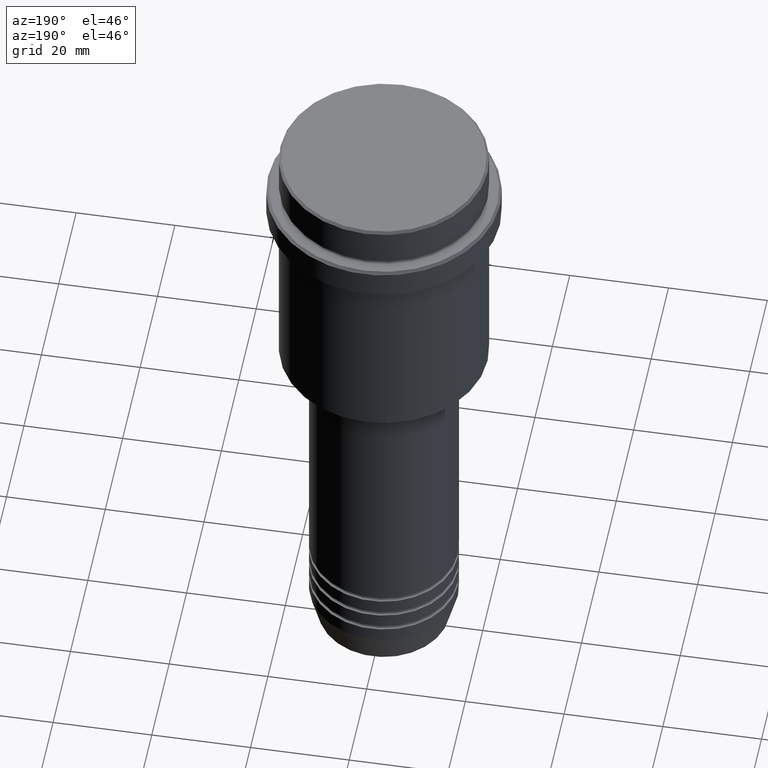
[diagram: clean part render]
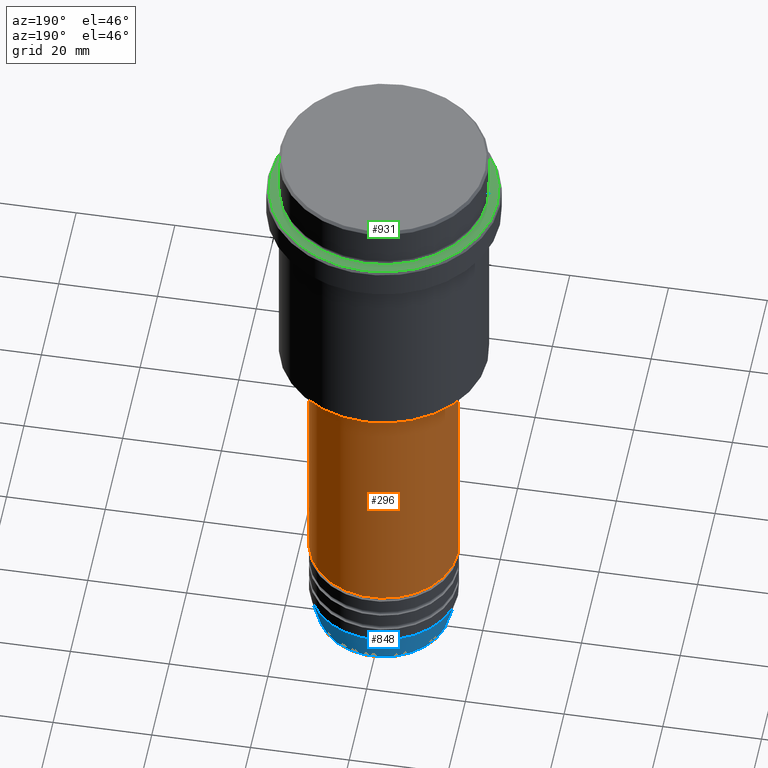
[diagram: same view with three faces highlighted in distinct colors, each labeled with its STEP entity id]
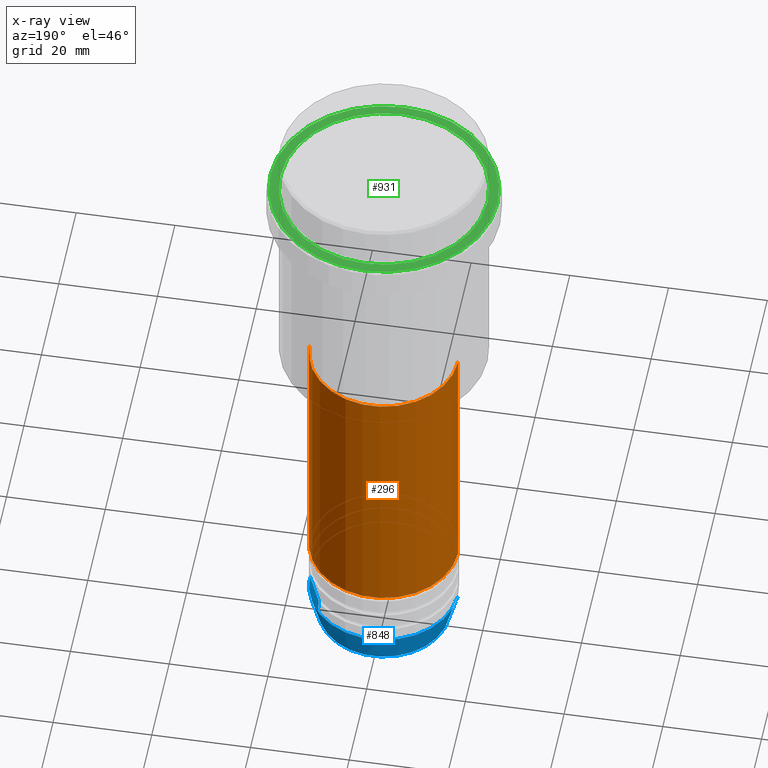
[diagram: x-ray of the same camera — body ghosted, the three highlighted faces saturated]
A machine part, auxiliary view with three faces highlighted in distinct colors.
The next image is the same camera in x-ray (body ghosted, the three faces saturated) — at least one of them is partly hidden behind the body in this view.
Their STEP definitions:

[orange] entity #296 — the highlighted cylindrical surface (partial cylindrical patch) has radius 15 mm, axis along (-0, -0, 1).
#31 = CARTESIAN_POINT ( 'NONE',  ( 0.000000000000000000, 0.000000000000000000, 0.000000000000000000 ) ) ;
#70 = CARTESIAN_POINT ( 'NONE',  ( 15.00000000000000000, 0.000000000000000000, -110.9999999999998721 ) ) ;
#77 = ORIENTED_EDGE ( 'NONE', *, *, #1343, .T. ) ;
#141 = ORIENTED_EDGE ( 'NONE', *, *, #367, .T. ) ;
#146 = CIRCLE ( 'NONE', #950, 15.00000000000000000 ) ;
#178 = DIRECTION ( 'NONE',  ( -0.000000000000000000, -0.000000000000000000, 1.000000000000000000 ) ) ;
#183 = LINE ( 'NONE', #934, #441 ) ;
#186 = EDGE_LOOP ( 'NONE', ( #141, #77, #1395, #1080 ) ) ;
#193 = VERTEX_POINT ( 'NONE', #892 ) ;
#196 = CIRCLE ( 'NONE', #374, 15.00000000000000000 ) ;
#247 = DIRECTION ( 'NONE',  ( -0.000000000000000000, -0.000000000000000000, 1.000000000000000000 ) ) ;
#255 = EDGE_CURVE ( 'NONE', #1405, #433, #146, .T. ) ;
#296 = ADVANCED_FACE ( 'NONE', ( #355 ), #1230, .T. ) ;
#349 = VECTOR ( 'NONE', #1381, 1000.000000000000000 ) ;
#355 = FACE_OUTER_BOUND ( 'NONE', #186, .T. ) ;
#367 = EDGE_CURVE ( 'NONE', #650, #193, #196, .T. ) ;
#372 = DIRECTION ( 'NONE',  ( 1.000000000000000000, 0.000000000000000000, 0.000000000000000000 ) ) ;
#374 = AXIS2_PLACEMENT_3D ( 'NONE', #727, #1033, #1366 ) ;
#433 = VERTEX_POINT ( 'NONE', #816 ) ;
#441 = VECTOR ( 'NONE', #178, 1000.000000000000000 ) ;
#472 = CARTESIAN_POINT ( 'NONE',  ( 0.000000000000000000, 0.000000000000000000, -55.99999999999997158 ) ) ;
#489 = LINE ( 'NONE', #1150, #349 ) ;
#556 = DIRECTION ( 'NONE',  ( -0.000000000000000000, -0.000000000000000000, 1.000000000000000000 ) ) ;
#650 = VERTEX_POINT ( 'NONE', #70 ) ;
#727 = CARTESIAN_POINT ( 'NONE',  ( 0.000000000000000000, 0.000000000000000000, -110.9999999999998721 ) ) ;
#816 = CARTESIAN_POINT ( 'NONE',  ( -15.00000000000000000, 1.836970198721029589E-15, -55.99999999999997158 ) ) ;
#892 = CARTESIAN_POINT ( 'NONE',  ( -15.00000000000000000, 1.836970198721029589E-15, -110.9999999999998721 ) ) ;
#934 = CARTESIAN_POINT ( 'NONE',  ( -15.00000000000000000, 1.836970198721029589E-15, 0.000000000000000000 ) ) ;
#950 = AXIS2_PLACEMENT_3D ( 'NONE', #472, #556, #372 ) ;
#990 = CARTESIAN_POINT ( 'NONE',  ( 15.00000000000000000, 0.000000000000000000, -55.99999999999997158 ) ) ;
#997 = EDGE_CURVE ( 'NONE', #650, #1405, #489, .T. ) ;
#1033 = DIRECTION ( 'NONE',  ( -0.000000000000000000, -0.000000000000000000, 1.000000000000000000 ) ) ;
#1080 = ORIENTED_EDGE ( 'NONE', *, *, #997, .F. ) ;
#1132 = AXIS2_PLACEMENT_3D ( 'NONE', #31, #247, #1374 ) ;
#1150 = CARTESIAN_POINT ( 'NONE',  ( 15.00000000000000000, 0.000000000000000000, 0.000000000000000000 ) ) ;
#1230 = CYLINDRICAL_SURFACE ( 'NONE', #1132, 15.00000000000000000 ) ;
#1343 = EDGE_CURVE ( 'NONE', #193, #433, #183, .T. ) ;
#1366 = DIRECTION ( 'NONE',  ( 1.000000000000000000, 0.000000000000000000, 0.000000000000000000 ) ) ;
#1374 = DIRECTION ( 'NONE',  ( 1.000000000000000000, 0.000000000000000000, 0.000000000000000000 ) ) ;
#1381 = DIRECTION ( 'NONE',  ( -0.000000000000000000, -0.000000000000000000, 1.000000000000000000 ) ) ;
#1395 = ORIENTED_EDGE ( 'NONE', *, *, #255, .F. ) ;
#1405 = VERTEX_POINT ( 'NONE', #990 ) ;

[blue] entity #848 — the highlighted conical surface has half-angle 15 deg.
#48 = FACE_OUTER_BOUND ( 'NONE', #1272, .T. ) ;
#55 = VECTOR ( 'NONE', #167, 1000.000000000000000 ) ;
#65 = VERTEX_POINT ( 'NONE', #1199 ) ;
#167 = DIRECTION ( 'NONE',  ( -0.2588190451025213501, 3.169619151431772337E-17, 0.9659258262890680902 ) ) ;
#231 = ORIENTED_EDGE ( 'NONE', *, *, #1276, .T. ) ;
#265 = CONICAL_SURFACE ( 'NONE', #619, 15.00000000000000000, 0.2617993877991500740 ) ;
#361 = CARTESIAN_POINT ( 'NONE',  ( 0.000000000000000000, 0.000000000000000000, -123.0000000000000000 ) ) ;
#375 = DIRECTION ( 'NONE',  ( 1.000000000000000000, 0.000000000000000000, 0.000000000000000000 ) ) ;
#431 = ORIENTED_EDGE ( 'NONE', *, *, #869, .F. ) ;
#444 = AXIS2_PLACEMENT_3D ( 'NONE', #361, #1035, #469 ) ;
#457 = CARTESIAN_POINT ( 'NONE',  ( 15.00000000000000000, 0.000000000000000000, -123.0000000000000000 ) ) ;
#469 = DIRECTION ( 'NONE',  ( 1.000000000000000000, 0.000000000000000000, 0.000000000000000000 ) ) ;
#486 = ORIENTED_EDGE ( 'NONE', *, *, #910, .T. ) ;
#523 = VERTEX_POINT ( 'NONE', #1328 ) ;
#554 = VERTEX_POINT ( 'NONE', #814 ) ;
#559 = DIRECTION ( 'NONE',  ( 1.000000000000000000, 0.000000000000000000, 0.000000000000000000 ) ) ;
#577 = LINE ( 'NONE', #457, #690 ) ;
#619 = AXIS2_PLACEMENT_3D ( 'NONE', #1124, #1119, #559 ) ;
#638 = CIRCLE ( 'NONE', #645, 13.22365507213719305 ) ;
#645 = AXIS2_PLACEMENT_3D ( 'NONE', #1232, #1023, #375 ) ;
#676 = DIRECTION ( 'NONE',  ( 0.2588190451025213501, 0.000000000000000000, 0.9659258262890680902 ) ) ;
#690 = VECTOR ( 'NONE', #676, 1000.000000000000000 ) ;
#814 = CARTESIAN_POINT ( 'NONE',  ( -13.22365507213719305, 1.728200442216588386E-15, -129.6294095225512422 ) ) ;
#837 = VERTEX_POINT ( 'NONE', #1145 ) ;
#841 = EDGE_CURVE ( 'NONE', #65, #523, #577, .T. ) ;
#848 = ADVANCED_FACE ( 'NONE', ( #48 ), #265, .T. ) ;
#869 = EDGE_CURVE ( 'NONE', #523, #837, #1064, .T. ) ;
#910 = EDGE_CURVE ( 'NONE', #65, #554, #638, .T. ) ;
#940 = LINE ( 'NONE', #1282, #55 ) ;
#996 = ORIENTED_EDGE ( 'NONE', *, *, #841, .F. ) ;
#1023 = DIRECTION ( 'NONE',  ( -0.000000000000000000, -0.000000000000000000, 1.000000000000000000 ) ) ;
#1035 = DIRECTION ( 'NONE',  ( -0.000000000000000000, -0.000000000000000000, 1.000000000000000000 ) ) ;
#1064 = CIRCLE ( 'NONE', #444, 15.00000000000000000 ) ;
#1119 = DIRECTION ( 'NONE',  ( -0.000000000000000000, -0.000000000000000000, 1.000000000000000000 ) ) ;
#1124 = CARTESIAN_POINT ( 'NONE',  ( 0.000000000000000000, 0.000000000000000000, -123.0000000000000000 ) ) ;
#1145 = CARTESIAN_POINT ( 'NONE',  ( -15.00000000000000000, 1.836970198721029589E-15, -123.0000000000000000 ) ) ;
#1199 = CARTESIAN_POINT ( 'NONE',  ( 13.22365507213719305, 0.000000000000000000, -129.6294095225512422 ) ) ;
#1232 = CARTESIAN_POINT ( 'NONE',  ( 0.000000000000000000, 0.000000000000000000, -129.6294095225512422 ) ) ;
#1272 = EDGE_LOOP ( 'NONE', ( #486, #231, #431, #996 ) ) ;
#1276 = EDGE_CURVE ( 'NONE', #554, #837, #940, .T. ) ;
#1282 = CARTESIAN_POINT ( 'NONE',  ( -15.00000000000000000, 1.836970198721029589E-15, -123.0000000000000000 ) ) ;
#1328 = CARTESIAN_POINT ( 'NONE',  ( 15.00000000000000000, 0.000000000000000000, -123.0000000000000000 ) ) ;

[green] entity #931 — the highlighted planar face has unit normal (0, -0, 1).
#36 = CARTESIAN_POINT ( 'NONE',  ( 23.00000000000001066, 2.847303808017596928E-15, -9.000000000000001776 ) ) ;
#45 = EDGE_CURVE ( 'NONE', #1412, #791, #1246, .T. ) ;
#63 = CARTESIAN_POINT ( 'NONE',  ( 0.000000000000000000, 0.000000000000000000, -9.000000000000001776 ) ) ;
#93 = CARTESIAN_POINT ( 'NONE',  ( -20.99999999999999289, 2.571758278209440872E-15, -9.000000000000001776 ) ) ;
#95 = DIRECTION ( 'NONE',  ( 1.000000000000000000, 0.000000000000000000, 0.000000000000000000 ) ) ;
#156 = FACE_OUTER_BOUND ( 'NONE', #651, .T. ) ;
#162 = PLANE ( 'NONE',  #1313 ) ;
#194 = EDGE_CURVE ( 'NONE', #791, #1412, #1015, .T. ) ;
#250 = FACE_BOUND ( 'NONE', #1332, .T. ) ;
#259 = DIRECTION ( 'NONE',  ( 1.000000000000000000, 0.000000000000000000, 0.000000000000000000 ) ) ;
#383 = DIRECTION ( 'NONE',  ( 0.000000000000000000, -0.000000000000000000, 1.000000000000000000 ) ) ;
#396 = AXIS2_PLACEMENT_3D ( 'NONE', #672, #999, #451 ) ;
#451 = DIRECTION ( 'NONE',  ( 1.000000000000000000, 0.000000000000000000, 0.000000000000000000 ) ) ;
#525 = CARTESIAN_POINT ( 'NONE',  ( 20.99999999999999289, 0.000000000000000000, -9.000000000000001776 ) ) ;
#535 = CARTESIAN_POINT ( 'NONE',  ( 0.000000000000000000, 0.000000000000000000, -9.000000000000001776 ) ) ;
#592 = AXIS2_PLACEMENT_3D ( 'NONE', #535, #973, #1072 ) ;
#606 = ORIENTED_EDGE ( 'NONE', *, *, #729, .T. ) ;
#651 = EDGE_LOOP ( 'NONE', ( #606, #980 ) ) ;
#672 = CARTESIAN_POINT ( 'NONE',  ( 0.000000000000000000, 0.000000000000000000, -9.000000000000001776 ) ) ;
#691 = CARTESIAN_POINT ( 'NONE',  ( 0.000000000000000000, 0.000000000000000000, -9.000000000000001776 ) ) ;
#715 = CIRCLE ( 'NONE', #396, 23.00000000000001066 ) ;
#729 = EDGE_CURVE ( 'NONE', #819, #942, #715, .T. ) ;
#791 = VERTEX_POINT ( 'NONE', #525 ) ;
#818 = DIRECTION ( 'NONE',  ( 1.000000000000000000, 0.000000000000000000, 0.000000000000000000 ) ) ;
#819 = VERTEX_POINT ( 'NONE', #959 ) ;
#826 = ORIENTED_EDGE ( 'NONE', *, *, #45, .T. ) ;
#836 = CIRCLE ( 'NONE', #1409, 23.00000000000001066 ) ;
#931 = ADVANCED_FACE ( 'NONE', ( #156, #250 ), #162, .T. ) ;
#942 = VERTEX_POINT ( 'NONE', #36 ) ;
#959 = CARTESIAN_POINT ( 'NONE',  ( -23.00000000000001066, 0.000000000000000000, -9.000000000000001776 ) ) ;
#967 = ORIENTED_EDGE ( 'NONE', *, *, #194, .T. ) ;
#973 = DIRECTION ( 'NONE',  ( 0.000000000000000000, 0.000000000000000000, -1.000000000000000000 ) ) ;
#980 = ORIENTED_EDGE ( 'NONE', *, *, #1016, .T. ) ;
#999 = DIRECTION ( 'NONE',  ( -0.000000000000000000, -0.000000000000000000, 1.000000000000000000 ) ) ;
#1015 = CIRCLE ( 'NONE', #1294, 20.99999999999999289 ) ;
#1016 = EDGE_CURVE ( 'NONE', #942, #819, #836, .T. ) ;
#1072 = DIRECTION ( 'NONE',  ( 1.000000000000000000, 0.000000000000000000, 0.000000000000000000 ) ) ;
#1105 = DIRECTION ( 'NONE',  ( 0.000000000000000000, 0.000000000000000000, -1.000000000000000000 ) ) ;
#1238 = CARTESIAN_POINT ( 'NONE',  ( 0.000000000000000000, 20.49999999999999645, -9.000000000000001776 ) ) ;
#1246 = CIRCLE ( 'NONE', #592, 20.99999999999999289 ) ;
#1266 = DIRECTION ( 'NONE',  ( -0.000000000000000000, -0.000000000000000000, 1.000000000000000000 ) ) ;
#1294 = AXIS2_PLACEMENT_3D ( 'NONE', #691, #1105, #259 ) ;
#1313 = AXIS2_PLACEMENT_3D ( 'NONE', #1238, #383, #818 ) ;
#1332 = EDGE_LOOP ( 'NONE', ( #967, #826 ) ) ;
#1409 = AXIS2_PLACEMENT_3D ( 'NONE', #63, #1266, #95 ) ;
#1412 = VERTEX_POINT ( 'NONE', #93 ) ;